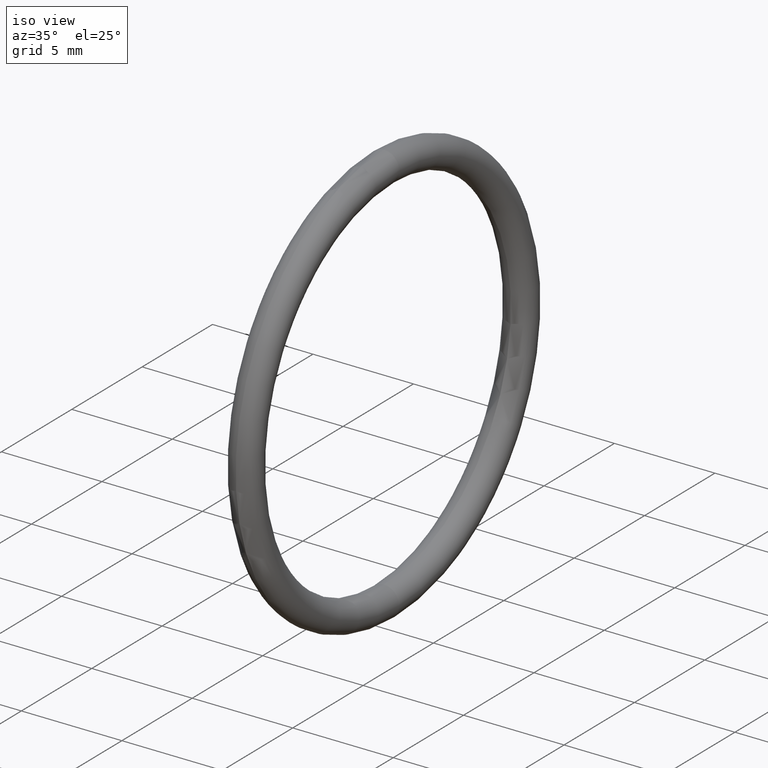
[diagram: clean part render]
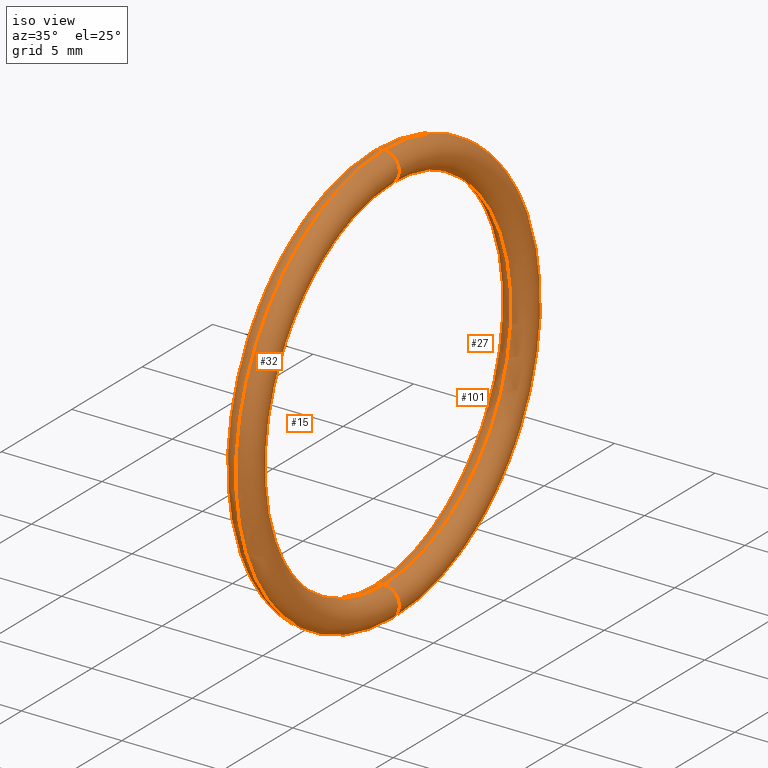
[diagram: same view with one multi-face feature highlighted, each face labeled with its STEP entity id]
A machine part, iso view. The highlighted faces form ONE feature: a constant-radius fillet chain: 4 tangent blend faces with common blend radius 0.762 mm. The faces share edges in the B-rep.
Their STEP definitions:
[1] entity #101 (Torus):
#1 = ORIENTED_EDGE ( 'NONE', *, *, #4, .F. ) ;
#4 = EDGE_CURVE ( 'NONE', #12, #25, #105, .T. ) ;
#11 = VERTEX_POINT ( 'NONE', #138 ) ;
#12 = VERTEX_POINT ( 'NONE', #137 ) ;
#18 = EDGE_CURVE ( 'NONE', #11, #12, #130, .T. ) ;
#20 = EDGE_CURVE ( 'NONE', #22, #25, #125, .T. ) ;
#22 = VERTEX_POINT ( 'NONE', #120 ) ;
#25 = VERTEX_POINT ( 'NONE', #97 ) ;
#26 = ORIENTED_EDGE ( 'NONE', *, *, #29, .T. ) ;
#29 = EDGE_CURVE ( 'NONE', #11, #22, #94, .T. ) ;
#30 = ORIENTED_EDGE ( 'NONE', *, *, #20, .T. ) ;
#68 = DIRECTION ( 'NONE',  ( 0.0000000000000000000, 0.0000000000000000000, 1.000000000000000000 ) ) ;
#69 = DIRECTION ( 'NONE',  ( -1.000000000000000000, -0.0000000000000000000, -0.0000000000000000000 ) ) ;
#70 = CARTESIAN_POINT ( 'NONE',  ( 0.1000000000000000600, 0.0000000000000000000, 0.0000000000000000000 ) ) ;
#71 = AXIS2_PLACEMENT_3D ( 'NONE', #70, #69, #68 ) ;
#73 = TOROIDAL_SURFACE ( 'NONE', #71, 0.3850000000000000100, 0.03000000000000000900 ) ;
#74 = FACE_OUTER_BOUND ( 'NONE', #102, .T. ) ;
#86 = DIRECTION ( 'NONE',  ( 0.0000000000000000000, 0.0000000000000000000, 1.000000000000000000 ) ) ;
#87 = DIRECTION ( 'NONE',  ( -1.000000000000000000, -0.0000000000000000000, -0.0000000000000000000 ) ) ;
#88 = CARTESIAN_POINT ( 'NONE',  ( 0.1000000000000000600, 0.0000000000000000000, 0.0000000000000000000 ) ) ;
#89 = AXIS2_PLACEMENT_3D ( 'NONE', #88, #87, #86 ) ;
#94 = CIRCLE ( 'NONE', #89, 0.4150000000000000400 ) ;
#97 = CARTESIAN_POINT ( 'NONE',  ( 0.1000000000000000600, 4.347496136973103500E-017, -0.3549999999999999800 ) ) ;
#101 = ADVANCED_FACE ( 'NONE', ( #74 ), #73, .T. ) ;
#102 = EDGE_LOOP ( 'NONE', ( #103, #26, #30, #1 ) ) ;
#103 = ORIENTED_EDGE ( 'NONE', *, *, #18, .F. ) ;
#105 = CIRCLE ( 'NONE', #146, 0.3549999999999999800 ) ;
#120 = CARTESIAN_POINT ( 'NONE',  ( 0.1000000000000000600, 5.082284216461516300E-017, -0.4150000000000000400 ) ) ;
#121 = DIRECTION ( 'NONE',  ( 0.0000000000000000000, -1.224646799147352200E-016, 1.000000000000000000 ) ) ;
#122 = DIRECTION ( 'NONE',  ( -0.0000000000000000000, 1.000000000000000000, 1.224646799147353200E-016 ) ) ;
#123 = CARTESIAN_POINT ( 'NONE',  ( 0.1000000000000000600, 4.714890176717309300E-017, -0.3850000000000000100 ) ) ;
#124 = AXIS2_PLACEMENT_3D ( 'NONE', #123, #122, #121 ) ;
#125 = CIRCLE ( 'NONE', #124, 0.03000000000000002300 ) ;
#126 = DIRECTION ( 'NONE',  ( 0.0000000000000000000, 0.0000000000000000000, -1.000000000000000000 ) ) ;
#127 = DIRECTION ( 'NONE',  ( 0.0000000000000000000, -1.000000000000000000, 0.0000000000000000000 ) ) ;
#128 = CARTESIAN_POINT ( 'NONE',  ( 0.1000000000000000600, 0.0000000000000000000, 0.3850000000000000100 ) ) ;
#129 = AXIS2_PLACEMENT_3D ( 'NONE', #128, #127, #126 ) ;
#130 = CIRCLE ( 'NONE', #129, 0.03000000000000002300 ) ;
#137 = CARTESIAN_POINT ( 'NONE',  ( 0.1000000000000000600, 0.0000000000000000000, 0.3549999999999999800 ) ) ;
#138 = CARTESIAN_POINT ( 'NONE',  ( 0.1000000000000000600, 0.0000000000000000000, 0.4150000000000000400 ) ) ;
#143 = DIRECTION ( 'NONE',  ( 0.0000000000000000000, 0.0000000000000000000, 1.000000000000000000 ) ) ;
#144 = DIRECTION ( 'NONE',  ( -1.000000000000000000, -0.0000000000000000000, -0.0000000000000000000 ) ) ;
#145 = CARTESIAN_POINT ( 'NONE',  ( 0.1000000000000000600, 0.0000000000000000000, 0.0000000000000000000 ) ) ;
#146 = AXIS2_PLACEMENT_3D ( 'NONE', #145, #144, #143 ) ;
[2] entity #27 (Torus):
#2 = EDGE_CURVE ( 'NONE', #25, #22, #110, .T. ) ;
#3 = ORIENTED_EDGE ( 'NONE', *, *, #6, .F. ) ;
#4 = EDGE_CURVE ( 'NONE', #12, #25, #105, .T. ) ;
#5 = ORIENTED_EDGE ( 'NONE', *, *, #29, .F. ) ;
#6 = EDGE_CURVE ( 'NONE', #12, #11, #142, .T. ) ;
#7 = ORIENTED_EDGE ( 'NONE', *, *, #2, .T. ) ;
#11 = VERTEX_POINT ( 'NONE', #138 ) ;
#12 = VERTEX_POINT ( 'NONE', #137 ) ;
#22 = VERTEX_POINT ( 'NONE', #120 ) ;
#25 = VERTEX_POINT ( 'NONE', #97 ) ;
#27 = ADVANCED_FACE ( 'NONE', ( #96 ), #95, .T. ) ;
#28 = EDGE_LOOP ( 'NONE', ( #5, #3, #31, #7 ) ) ;
#29 = EDGE_CURVE ( 'NONE', #11, #22, #94, .T. ) ;
#31 = ORIENTED_EDGE ( 'NONE', *, *, #4, .T. ) ;
#86 = DIRECTION ( 'NONE',  ( 0.0000000000000000000, 0.0000000000000000000, 1.000000000000000000 ) ) ;
#87 = DIRECTION ( 'NONE',  ( -1.000000000000000000, -0.0000000000000000000, -0.0000000000000000000 ) ) ;
#88 = CARTESIAN_POINT ( 'NONE',  ( 0.1000000000000000600, 0.0000000000000000000, 0.0000000000000000000 ) ) ;
#89 = AXIS2_PLACEMENT_3D ( 'NONE', #88, #87, #86 ) ;
#90 = DIRECTION ( 'NONE',  ( 0.0000000000000000000, 0.0000000000000000000, 1.000000000000000000 ) ) ;
#91 = DIRECTION ( 'NONE',  ( -1.000000000000000000, -0.0000000000000000000, -0.0000000000000000000 ) ) ;
#92 = CARTESIAN_POINT ( 'NONE',  ( 0.1000000000000000600, 0.0000000000000000000, 0.0000000000000000000 ) ) ;
#93 = AXIS2_PLACEMENT_3D ( 'NONE', #92, #91, #90 ) ;
#94 = CIRCLE ( 'NONE', #89, 0.4150000000000000400 ) ;
#95 = TOROIDAL_SURFACE ( 'NONE', #93, 0.3850000000000000100, 0.03000000000000000900 ) ;
#96 = FACE_OUTER_BOUND ( 'NONE', #28, .T. ) ;
#97 = CARTESIAN_POINT ( 'NONE',  ( 0.1000000000000000600, 4.347496136973103500E-017, -0.3549999999999999800 ) ) ;
#105 = CIRCLE ( 'NONE', #146, 0.3549999999999999800 ) ;
#106 = DIRECTION ( 'NONE',  ( 0.0000000000000000000, -1.224646799147352200E-016, 1.000000000000000000 ) ) ;
#107 = DIRECTION ( 'NONE',  ( -0.0000000000000000000, 1.000000000000000000, 1.224646799147353200E-016 ) ) ;
#108 = CARTESIAN_POINT ( 'NONE',  ( 0.1000000000000000600, 4.714890176717309300E-017, -0.3850000000000000100 ) ) ;
#109 = AXIS2_PLACEMENT_3D ( 'NONE', #108, #107, #106 ) ;
#110 = CIRCLE ( 'NONE', #109, 0.03000000000000002300 ) ;
#120 = CARTESIAN_POINT ( 'NONE',  ( 0.1000000000000000600, 5.082284216461516300E-017, -0.4150000000000000400 ) ) ;
#137 = CARTESIAN_POINT ( 'NONE',  ( 0.1000000000000000600, 0.0000000000000000000, 0.3549999999999999800 ) ) ;
#138 = CARTESIAN_POINT ( 'NONE',  ( 0.1000000000000000600, 0.0000000000000000000, 0.4150000000000000400 ) ) ;
#139 = DIRECTION ( 'NONE',  ( 0.0000000000000000000, 0.0000000000000000000, -1.000000000000000000 ) ) ;
#140 = DIRECTION ( 'NONE',  ( 0.0000000000000000000, -1.000000000000000000, 0.0000000000000000000 ) ) ;
#141 = AXIS2_PLACEMENT_3D ( 'NONE', #147, #140, #139 ) ;
#142 = CIRCLE ( 'NONE', #141, 0.03000000000000002300 ) ;
#143 = DIRECTION ( 'NONE',  ( 0.0000000000000000000, 0.0000000000000000000, 1.000000000000000000 ) ) ;
#144 = DIRECTION ( 'NONE',  ( -1.000000000000000000, -0.0000000000000000000, -0.0000000000000000000 ) ) ;
#145 = CARTESIAN_POINT ( 'NONE',  ( 0.1000000000000000600, 0.0000000000000000000, 0.0000000000000000000 ) ) ;
#146 = AXIS2_PLACEMENT_3D ( 'NONE', #145, #144, #143 ) ;
#147 = CARTESIAN_POINT ( 'NONE',  ( 0.1000000000000000600, 0.0000000000000000000, 0.3850000000000000100 ) ) ;
[3] entity #15 (Torus):
#2 = EDGE_CURVE ( 'NONE', #25, #22, #110, .T. ) ;
#6 = EDGE_CURVE ( 'NONE', #12, #11, #142, .T. ) ;
#8 = ORIENTED_EDGE ( 'NONE', *, *, #23, .F. ) ;
#9 = ORIENTED_EDGE ( 'NONE', *, *, #100, .T. ) ;
#10 = ORIENTED_EDGE ( 'NONE', *, *, #2, .F. ) ;
#11 = VERTEX_POINT ( 'NONE', #138 ) ;
#12 = VERTEX_POINT ( 'NONE', #137 ) ;
#14 = ORIENTED_EDGE ( 'NONE', *, *, #6, .T. ) ;
#15 = ADVANCED_FACE ( 'NONE', ( #136 ), #134, .T. ) ;
#16 = EDGE_LOOP ( 'NONE', ( #8, #10, #9, #14 ) ) ;
#22 = VERTEX_POINT ( 'NONE', #120 ) ;
#23 = EDGE_CURVE ( 'NONE', #22, #11, #119, .T. ) ;
#25 = VERTEX_POINT ( 'NONE', #97 ) ;
#75 = DIRECTION ( 'NONE',  ( 0.0000000000000000000, 0.0000000000000000000, 1.000000000000000000 ) ) ;
#76 = DIRECTION ( 'NONE',  ( -1.000000000000000000, -0.0000000000000000000, -0.0000000000000000000 ) ) ;
#77 = CARTESIAN_POINT ( 'NONE',  ( 0.1000000000000000600, 0.0000000000000000000, 0.0000000000000000000 ) ) ;
#78 = AXIS2_PLACEMENT_3D ( 'NONE', #77, #76, #75 ) ;
#83 = CIRCLE ( 'NONE', #78, 0.3549999999999999800 ) ;
#97 = CARTESIAN_POINT ( 'NONE',  ( 0.1000000000000000600, 4.347496136973103500E-017, -0.3549999999999999800 ) ) ;
#98 = DIRECTION ( 'NONE',  ( 0.0000000000000000000, 0.0000000000000000000, 1.000000000000000000 ) ) ;
#100 = EDGE_CURVE ( 'NONE', #25, #12, #83, .T. ) ;
#106 = DIRECTION ( 'NONE',  ( 0.0000000000000000000, -1.224646799147352200E-016, 1.000000000000000000 ) ) ;
#107 = DIRECTION ( 'NONE',  ( -0.0000000000000000000, 1.000000000000000000, 1.224646799147353200E-016 ) ) ;
#108 = CARTESIAN_POINT ( 'NONE',  ( 0.1000000000000000600, 4.714890176717309300E-017, -0.3850000000000000100 ) ) ;
#109 = AXIS2_PLACEMENT_3D ( 'NONE', #108, #107, #106 ) ;
#110 = CIRCLE ( 'NONE', #109, 0.03000000000000002300 ) ;
#116 = DIRECTION ( 'NONE',  ( -1.000000000000000000, -0.0000000000000000000, -0.0000000000000000000 ) ) ;
#117 = CARTESIAN_POINT ( 'NONE',  ( 0.1000000000000000600, 0.0000000000000000000, 0.0000000000000000000 ) ) ;
#118 = AXIS2_PLACEMENT_3D ( 'NONE', #117, #116, #98 ) ;
#119 = CIRCLE ( 'NONE', #118, 0.4150000000000000400 ) ;
#120 = CARTESIAN_POINT ( 'NONE',  ( 0.1000000000000000600, 5.082284216461516300E-017, -0.4150000000000000400 ) ) ;
#131 = DIRECTION ( 'NONE',  ( 0.0000000000000000000, 0.0000000000000000000, 1.000000000000000000 ) ) ;
#132 = DIRECTION ( 'NONE',  ( -1.000000000000000000, -0.0000000000000000000, -0.0000000000000000000 ) ) ;
#133 = AXIS2_PLACEMENT_3D ( 'NONE', #135, #132, #131 ) ;
#134 = TOROIDAL_SURFACE ( 'NONE', #133, 0.3850000000000000100, 0.03000000000000000900 ) ;
#135 = CARTESIAN_POINT ( 'NONE',  ( 0.1000000000000000600, 0.0000000000000000000, 0.0000000000000000000 ) ) ;
#136 = FACE_OUTER_BOUND ( 'NONE', #16, .T. ) ;
#137 = CARTESIAN_POINT ( 'NONE',  ( 0.1000000000000000600, 0.0000000000000000000, 0.3549999999999999800 ) ) ;
#138 = CARTESIAN_POINT ( 'NONE',  ( 0.1000000000000000600, 0.0000000000000000000, 0.4150000000000000400 ) ) ;
#139 = DIRECTION ( 'NONE',  ( 0.0000000000000000000, 0.0000000000000000000, -1.000000000000000000 ) ) ;
#140 = DIRECTION ( 'NONE',  ( 0.0000000000000000000, -1.000000000000000000, 0.0000000000000000000 ) ) ;
#141 = AXIS2_PLACEMENT_3D ( 'NONE', #147, #140, #139 ) ;
#142 = CIRCLE ( 'NONE', #141, 0.03000000000000002300 ) ;
#147 = CARTESIAN_POINT ( 'NONE',  ( 0.1000000000000000600, 0.0000000000000000000, 0.3850000000000000100 ) ) ;
[4] entity #32 (Torus):
#11 = VERTEX_POINT ( 'NONE', #138 ) ;
#12 = VERTEX_POINT ( 'NONE', #137 ) ;
#17 = ORIENTED_EDGE ( 'NONE', *, *, #18, .T. ) ;
#18 = EDGE_CURVE ( 'NONE', #11, #12, #130, .T. ) ;
#19 = EDGE_LOOP ( 'NONE', ( #21, #24, #17, #99 ) ) ;
#20 = EDGE_CURVE ( 'NONE', #22, #25, #125, .T. ) ;
#21 = ORIENTED_EDGE ( 'NONE', *, *, #20, .F. ) ;
#22 = VERTEX_POINT ( 'NONE', #120 ) ;
#23 = EDGE_CURVE ( 'NONE', #22, #11, #119, .T. ) ;
#24 = ORIENTED_EDGE ( 'NONE', *, *, #23, .T. ) ;
#25 = VERTEX_POINT ( 'NONE', #97 ) ;
#32 = ADVANCED_FACE ( 'NONE', ( #85 ), #84, .T. ) ;
#75 = DIRECTION ( 'NONE',  ( 0.0000000000000000000, 0.0000000000000000000, 1.000000000000000000 ) ) ;
#76 = DIRECTION ( 'NONE',  ( -1.000000000000000000, -0.0000000000000000000, -0.0000000000000000000 ) ) ;
#77 = CARTESIAN_POINT ( 'NONE',  ( 0.1000000000000000600, 0.0000000000000000000, 0.0000000000000000000 ) ) ;
#78 = AXIS2_PLACEMENT_3D ( 'NONE', #77, #76, #75 ) ;
#79 = DIRECTION ( 'NONE',  ( 0.0000000000000000000, 0.0000000000000000000, 1.000000000000000000 ) ) ;
#80 = DIRECTION ( 'NONE',  ( -1.000000000000000000, -0.0000000000000000000, -0.0000000000000000000 ) ) ;
#81 = CARTESIAN_POINT ( 'NONE',  ( 0.1000000000000000600, 0.0000000000000000000, 0.0000000000000000000 ) ) ;
#82 = AXIS2_PLACEMENT_3D ( 'NONE', #81, #80, #79 ) ;
#83 = CIRCLE ( 'NONE', #78, 0.3549999999999999800 ) ;
#84 = TOROIDAL_SURFACE ( 'NONE', #82, 0.3850000000000000100, 0.03000000000000000900 ) ;
#85 = FACE_OUTER_BOUND ( 'NONE', #19, .T. ) ;
#97 = CARTESIAN_POINT ( 'NONE',  ( 0.1000000000000000600, 4.347496136973103500E-017, -0.3549999999999999800 ) ) ;
#98 = DIRECTION ( 'NONE',  ( 0.0000000000000000000, 0.0000000000000000000, 1.000000000000000000 ) ) ;
#99 = ORIENTED_EDGE ( 'NONE', *, *, #100, .F. ) ;
#100 = EDGE_CURVE ( 'NONE', #25, #12, #83, .T. ) ;
#116 = DIRECTION ( 'NONE',  ( -1.000000000000000000, -0.0000000000000000000, -0.0000000000000000000 ) ) ;
#117 = CARTESIAN_POINT ( 'NONE',  ( 0.1000000000000000600, 0.0000000000000000000, 0.0000000000000000000 ) ) ;
#118 = AXIS2_PLACEMENT_3D ( 'NONE', #117, #116, #98 ) ;
#119 = CIRCLE ( 'NONE', #118, 0.4150000000000000400 ) ;
#120 = CARTESIAN_POINT ( 'NONE',  ( 0.1000000000000000600, 5.082284216461516300E-017, -0.4150000000000000400 ) ) ;
#121 = DIRECTION ( 'NONE',  ( 0.0000000000000000000, -1.224646799147352200E-016, 1.000000000000000000 ) ) ;
#122 = DIRECTION ( 'NONE',  ( -0.0000000000000000000, 1.000000000000000000, 1.224646799147353200E-016 ) ) ;
#123 = CARTESIAN_POINT ( 'NONE',  ( 0.1000000000000000600, 4.714890176717309300E-017, -0.3850000000000000100 ) ) ;
#124 = AXIS2_PLACEMENT_3D ( 'NONE', #123, #122, #121 ) ;
#125 = CIRCLE ( 'NONE', #124, 0.03000000000000002300 ) ;
#126 = DIRECTION ( 'NONE',  ( 0.0000000000000000000, 0.0000000000000000000, -1.000000000000000000 ) ) ;
#127 = DIRECTION ( 'NONE',  ( 0.0000000000000000000, -1.000000000000000000, 0.0000000000000000000 ) ) ;
#128 = CARTESIAN_POINT ( 'NONE',  ( 0.1000000000000000600, 0.0000000000000000000, 0.3850000000000000100 ) ) ;
#129 = AXIS2_PLACEMENT_3D ( 'NONE', #128, #127, #126 ) ;
#130 = CIRCLE ( 'NONE', #129, 0.03000000000000002300 ) ;
#137 = CARTESIAN_POINT ( 'NONE',  ( 0.1000000000000000600, 0.0000000000000000000, 0.3549999999999999800 ) ) ;
#138 = CARTESIAN_POINT ( 'NONE',  ( 0.1000000000000000600, 0.0000000000000000000, 0.4150000000000000400 ) ) ;